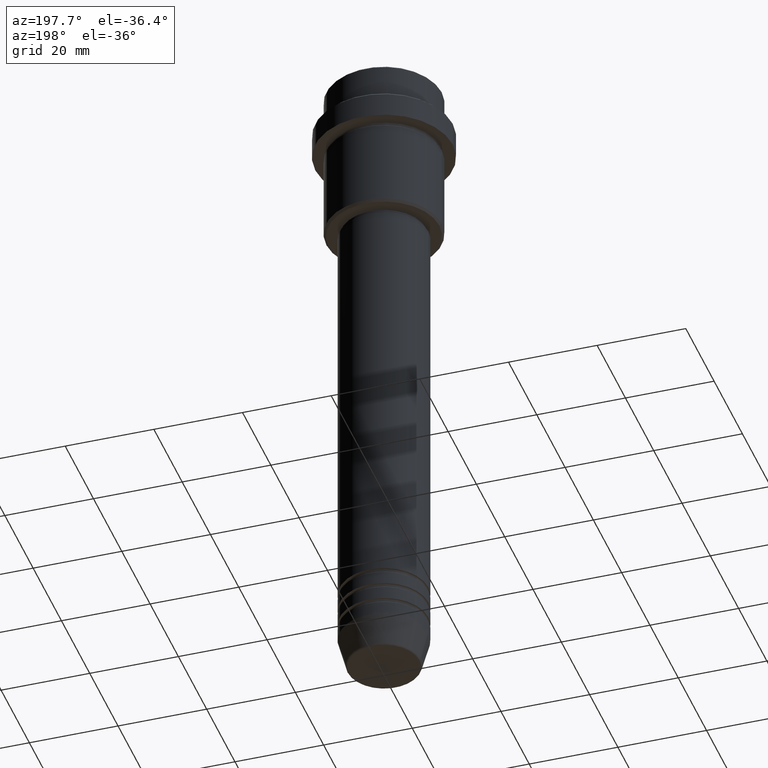
[diagram: clean part render]
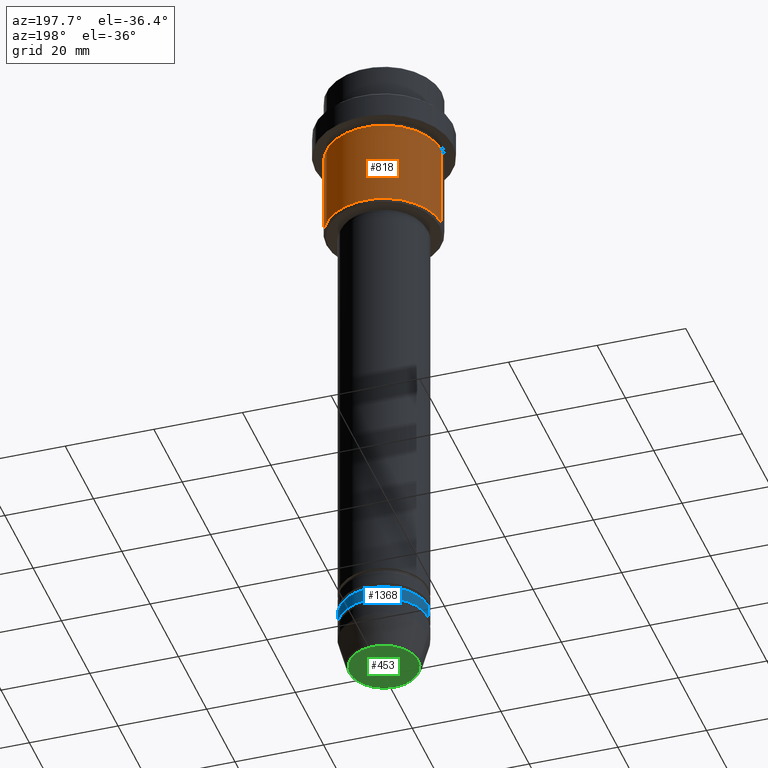
[diagram: same view with three faces highlighted in distinct colors, each labeled with its STEP entity id]
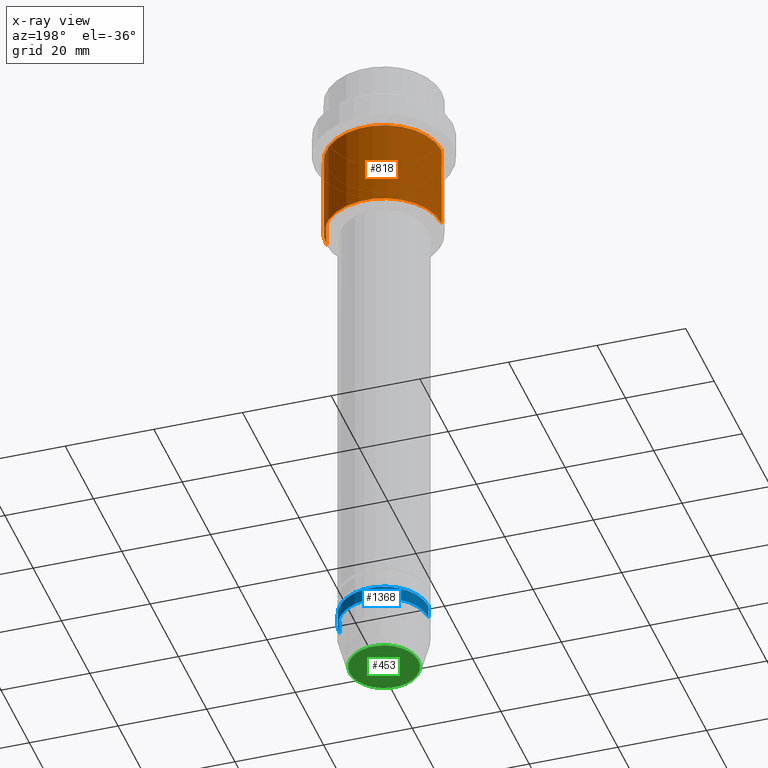
[diagram: x-ray of the same camera — body ghosted, the three highlighted faces saturated]
A machine part, auxiliary view with three faces highlighted in distinct colors.
The next image is the same camera in x-ray (body ghosted, the three faces saturated) — at least one of them is partly hidden behind the body in this view.
Their STEP definitions:

[orange] entity #818 — the highlighted cylindrical surface (partial cylindrical patch) has radius 13 mm, axis along (-0, -0, 1).
#2 = DIRECTION ( 'NONE',  ( 1.000000000000000000, 0.000000000000000000, 0.000000000000000000 ) ) ;
#45 = CARTESIAN_POINT ( 'NONE',  ( 0.000000000000000000, 0.000000000000000000, -35.50000000000000000 ) ) ;
#77 = DIRECTION ( 'NONE',  ( -1.000000000000000000, 0.000000000000000000, 0.000000000000000000 ) ) ;
#81 = ORIENTED_EDGE ( 'NONE', *, *, #1202, .F. ) ;
#94 = CIRCLE ( 'NONE', #1367, 13.00000000000000000 ) ;
#96 = VERTEX_POINT ( 'NONE', #195 ) ;
#112 = CARTESIAN_POINT ( 'NONE',  ( 0.000000000000000000, 0.000000000000000000, -15.99999999999997335 ) ) ;
#141 = ORIENTED_EDGE ( 'NONE', *, *, #668, .T. ) ;
#189 = LINE ( 'NONE', #627, #332 ) ;
#195 = CARTESIAN_POINT ( 'NONE',  ( -13.00000000000000000, 1.592040838891559095E-15, -35.50000000000000000 ) ) ;
#264 = ORIENTED_EDGE ( 'NONE', *, *, #1156, .F. ) ;
#284 = FACE_OUTER_BOUND ( 'NONE', #626, .T. ) ;
#332 = VECTOR ( 'NONE', #1061, 1000.000000000000000 ) ;
#334 = VERTEX_POINT ( 'NONE', #950 ) ;
#341 = LINE ( 'NONE', #675, #1054 ) ;
#458 = ORIENTED_EDGE ( 'NONE', *, *, #628, .T. ) ;
#554 = DIRECTION ( 'NONE',  ( -0.000000000000000000, -0.000000000000000000, 1.000000000000000000 ) ) ;
#626 = EDGE_LOOP ( 'NONE', ( #141, #458, #264, #81 ) ) ;
#627 = CARTESIAN_POINT ( 'NONE',  ( -13.00000000000000000, 1.592040838891559095E-15, 0.000000000000000000 ) ) ;
#628 = EDGE_CURVE ( 'NONE', #96, #334, #189, .T. ) ;
#632 = CYLINDRICAL_SURFACE ( 'NONE', #911, 13.00000000000000000 ) ;
#668 = EDGE_CURVE ( 'NONE', #1013, #96, #753, .T. ) ;
#675 = CARTESIAN_POINT ( 'NONE',  ( 13.00000000000000000, 0.000000000000000000, 0.000000000000000000 ) ) ;
#737 = CARTESIAN_POINT ( 'NONE',  ( 0.000000000000000000, 0.000000000000000000, 0.000000000000000000 ) ) ;
#753 = CIRCLE ( 'NONE', #1207, 13.00000000000000000 ) ;
#811 = DIRECTION ( 'NONE',  ( 1.000000000000000000, 0.000000000000000000, 0.000000000000000000 ) ) ;
#818 = ADVANCED_FACE ( 'NONE', ( #284 ), #632, .T. ) ;
#904 = CARTESIAN_POINT ( 'NONE',  ( 13.00000000000000000, 0.000000000000000000, -15.99999999999997335 ) ) ;
#911 = AXIS2_PLACEMENT_3D ( 'NONE', #737, #1354, #811 ) ;
#921 = VERTEX_POINT ( 'NONE', #904 ) ;
#950 = CARTESIAN_POINT ( 'NONE',  ( -13.00000000000000000, 1.592040838891559095E-15, -15.99999999999997335 ) ) ;
#1011 = DIRECTION ( 'NONE',  ( -0.000000000000000000, -0.000000000000000000, 1.000000000000000000 ) ) ;
#1013 = VERTEX_POINT ( 'NONE', #1035 ) ;
#1035 = CARTESIAN_POINT ( 'NONE',  ( 13.00000000000000000, 0.000000000000000000, -35.50000000000000000 ) ) ;
#1054 = VECTOR ( 'NONE', #1011, 1000.000000000000000 ) ;
#1055 = DIRECTION ( 'NONE',  ( -0.000000000000000000, -0.000000000000000000, 1.000000000000000000 ) ) ;
#1061 = DIRECTION ( 'NONE',  ( -0.000000000000000000, -0.000000000000000000, 1.000000000000000000 ) ) ;
#1156 = EDGE_CURVE ( 'NONE', #921, #334, #94, .T. ) ;
#1202 = EDGE_CURVE ( 'NONE', #1013, #921, #341, .T. ) ;
#1207 = AXIS2_PLACEMENT_3D ( 'NONE', #45, #1055, #77 ) ;
#1354 = DIRECTION ( 'NONE',  ( -0.000000000000000000, -0.000000000000000000, 1.000000000000000000 ) ) ;
#1367 = AXIS2_PLACEMENT_3D ( 'NONE', #112, #554, #2 ) ;

[blue] entity #1368 — the highlighted cylindrical surface (partial cylindrical patch) has radius 10 mm, axis along (-0, -0, 1).
#5 = DIRECTION ( 'NONE',  ( -0.000000000000000000, -0.000000000000000000, 1.000000000000000000 ) ) ;
#21 = DIRECTION ( 'NONE',  ( -0.000000000000000000, -0.000000000000000000, 1.000000000000000000 ) ) ;
#41 = DIRECTION ( 'NONE',  ( -0.000000000000000000, -0.000000000000000000, 1.000000000000000000 ) ) ;
#44 = LINE ( 'NONE', #1039, #729 ) ;
#52 = DIRECTION ( 'NONE',  ( -0.000000000000000000, -0.000000000000000000, 1.000000000000000000 ) ) ;
#69 = CIRCLE ( 'NONE', #106, 10.00000000000000000 ) ;
#106 = AXIS2_PLACEMENT_3D ( 'NONE', #1119, #21, #677 ) ;
#110 = DIRECTION ( 'NONE',  ( 1.000000000000000000, 0.000000000000000000, 0.000000000000000000 ) ) ;
#129 = VERTEX_POINT ( 'NONE', #479 ) ;
#221 = CARTESIAN_POINT ( 'NONE',  ( 10.00000000000000000, 0.000000000000000000, -136.9999999999998579 ) ) ;
#436 = VERTEX_POINT ( 'NONE', #483 ) ;
#479 = CARTESIAN_POINT ( 'NONE',  ( -10.00000000000000000, 1.224646799147353256E-15, -139.9999999999998579 ) ) ;
#483 = CARTESIAN_POINT ( 'NONE',  ( -10.00000000000000000, 1.224646799147353256E-15, -136.9999999999998579 ) ) ;
#535 = ORIENTED_EDGE ( 'NONE', *, *, #805, .T. ) ;
#574 = EDGE_CURVE ( 'NONE', #1193, #1153, #44, .T. ) ;
#622 = AXIS2_PLACEMENT_3D ( 'NONE', #1096, #5, #110 ) ;
#645 = CARTESIAN_POINT ( 'NONE',  ( -10.00000000000000000, 1.224646799147353256E-15, 0.000000000000000000 ) ) ;
#677 = DIRECTION ( 'NONE',  ( 1.000000000000000000, 0.000000000000000000, 0.000000000000000000 ) ) ;
#702 = DIRECTION ( 'NONE',  ( 1.000000000000000000, 0.000000000000000000, 0.000000000000000000 ) ) ;
#729 = VECTOR ( 'NONE', #52, 1000.000000000000000 ) ;
#757 = AXIS2_PLACEMENT_3D ( 'NONE', #1357, #41, #702 ) ;
#784 = LINE ( 'NONE', #645, #1073 ) ;
#805 = EDGE_CURVE ( 'NONE', #1193, #129, #69, .T. ) ;
#858 = CARTESIAN_POINT ( 'NONE',  ( 10.00000000000000000, 0.000000000000000000, -139.9999999999998579 ) ) ;
#870 = ORIENTED_EDGE ( 'NONE', *, *, #1323, .F. ) ;
#916 = CYLINDRICAL_SURFACE ( 'NONE', #757, 10.00000000000000000 ) ;
#958 = ORIENTED_EDGE ( 'NONE', *, *, #574, .F. ) ;
#984 = ORIENTED_EDGE ( 'NONE', *, *, #1110, .T. ) ;
#1039 = CARTESIAN_POINT ( 'NONE',  ( 10.00000000000000000, 0.000000000000000000, 0.000000000000000000 ) ) ;
#1073 = VECTOR ( 'NONE', #1079, 1000.000000000000000 ) ;
#1079 = DIRECTION ( 'NONE',  ( -0.000000000000000000, -0.000000000000000000, 1.000000000000000000 ) ) ;
#1092 = CIRCLE ( 'NONE', #622, 10.00000000000000000 ) ;
#1096 = CARTESIAN_POINT ( 'NONE',  ( 0.000000000000000000, 0.000000000000000000, -136.9999999999998579 ) ) ;
#1110 = EDGE_CURVE ( 'NONE', #129, #436, #784, .T. ) ;
#1119 = CARTESIAN_POINT ( 'NONE',  ( 0.000000000000000000, 0.000000000000000000, -139.9999999999998579 ) ) ;
#1123 = FACE_OUTER_BOUND ( 'NONE', #1210, .T. ) ;
#1153 = VERTEX_POINT ( 'NONE', #221 ) ;
#1193 = VERTEX_POINT ( 'NONE', #858 ) ;
#1210 = EDGE_LOOP ( 'NONE', ( #535, #984, #870, #958 ) ) ;
#1323 = EDGE_CURVE ( 'NONE', #1153, #436, #1092, .T. ) ;
#1357 = CARTESIAN_POINT ( 'NONE',  ( 0.000000000000000000, 0.000000000000000000, 0.000000000000000000 ) ) ;
#1368 = ADVANCED_FACE ( 'NONE', ( #1123 ), #916, .T. ) ;

[green] entity #453 — the highlighted planar face has unit normal (0, -0, 1).
#13 = CARTESIAN_POINT ( 'NONE',  ( 0.000000000000000000, 0.000000000000000000, -150.9999999999999716 ) ) ;
#34 = CIRCLE ( 'NONE', #67, 7.740692158992659166 ) ;
#37 = AXIS2_PLACEMENT_3D ( 'NONE', #993, #120, #143 ) ;
#63 = VERTEX_POINT ( 'NONE', #966 ) ;
#67 = AXIS2_PLACEMENT_3D ( 'NONE', #508, #957, #1379 ) ;
#88 = FACE_OUTER_BOUND ( 'NONE', #1290, .T. ) ;
#120 = DIRECTION ( 'NONE',  ( 0.000000000000000000, 0.000000000000000000, -1.000000000000000000 ) ) ;
#122 = DIRECTION ( 'NONE',  ( 0.000000000000000000, -0.000000000000000000, 1.000000000000000000 ) ) ;
#143 = DIRECTION ( 'NONE',  ( 1.000000000000000000, 0.000000000000000000, 0.000000000000000000 ) ) ;
#338 = DIRECTION ( 'NONE',  ( 1.000000000000000000, 0.000000000000000000, 0.000000000000000000 ) ) ;
#417 = EDGE_CURVE ( 'NONE', #63, #1410, #34, .T. ) ;
#428 = CIRCLE ( 'NONE', #37, 7.740692158992659166 ) ;
#453 = ADVANCED_FACE ( 'NONE', ( #88 ), #1417, .F. ) ;
#508 = CARTESIAN_POINT ( 'NONE',  ( 0.000000000000000000, 0.000000000000000000, -150.9999999999999716 ) ) ;
#523 = AXIS2_PLACEMENT_3D ( 'NONE', #13, #122, #338 ) ;
#787 = ORIENTED_EDGE ( 'NONE', *, *, #868, .T. ) ;
#868 = EDGE_CURVE ( 'NONE', #1410, #63, #428, .T. ) ;
#957 = DIRECTION ( 'NONE',  ( 0.000000000000000000, 0.000000000000000000, -1.000000000000000000 ) ) ;
#966 = CARTESIAN_POINT ( 'NONE',  ( 7.740692158992659166, 0.000000000000000000, -150.9999999999999716 ) ) ;
#993 = CARTESIAN_POINT ( 'NONE',  ( 0.000000000000000000, 0.000000000000000000, -150.9999999999999716 ) ) ;
#1260 = CARTESIAN_POINT ( 'NONE',  ( -7.740692158992659166, 9.775343368540043079E-16, -150.9999999999999716 ) ) ;
#1290 = EDGE_LOOP ( 'NONE', ( #1378, #787 ) ) ;
#1378 = ORIENTED_EDGE ( 'NONE', *, *, #417, .T. ) ;
#1379 = DIRECTION ( 'NONE',  ( 1.000000000000000000, 0.000000000000000000, 0.000000000000000000 ) ) ;
#1410 = VERTEX_POINT ( 'NONE', #1260 ) ;
#1417 = PLANE ( 'NONE',  #523 ) ;